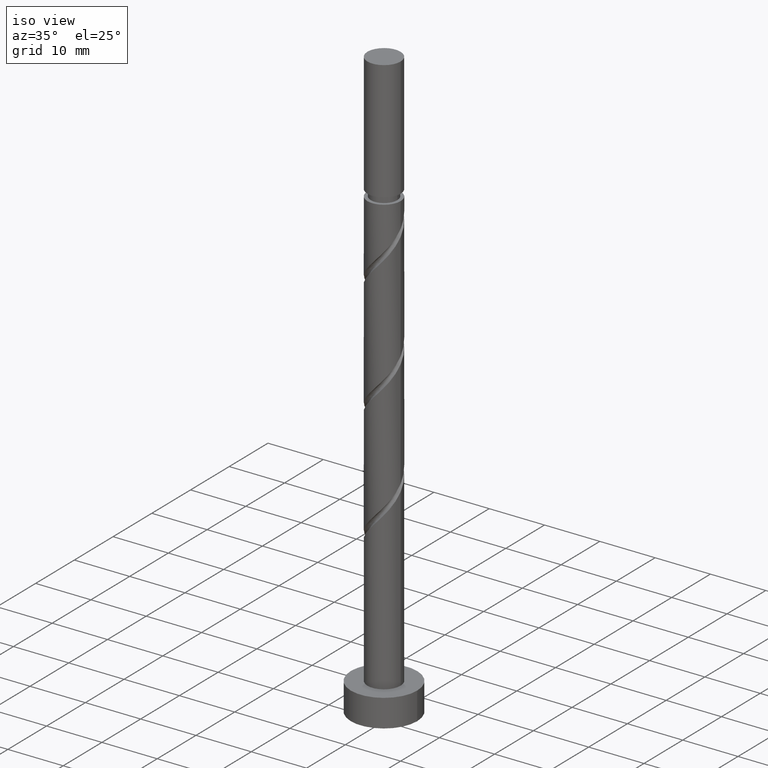
[diagram: clean part render]
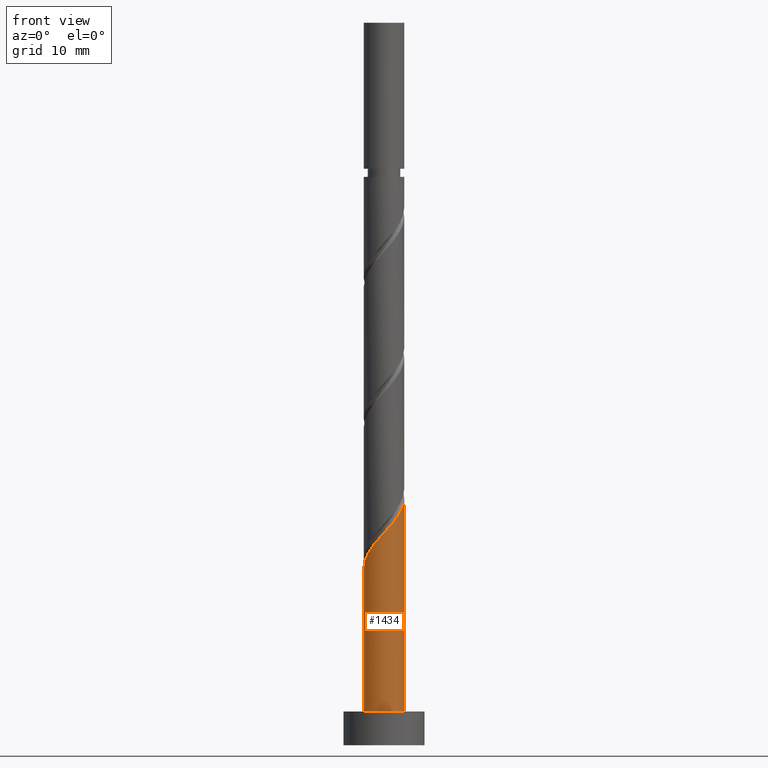
[diagram: tour spotlight — one face highlighted and labeled with its STEP entity id]
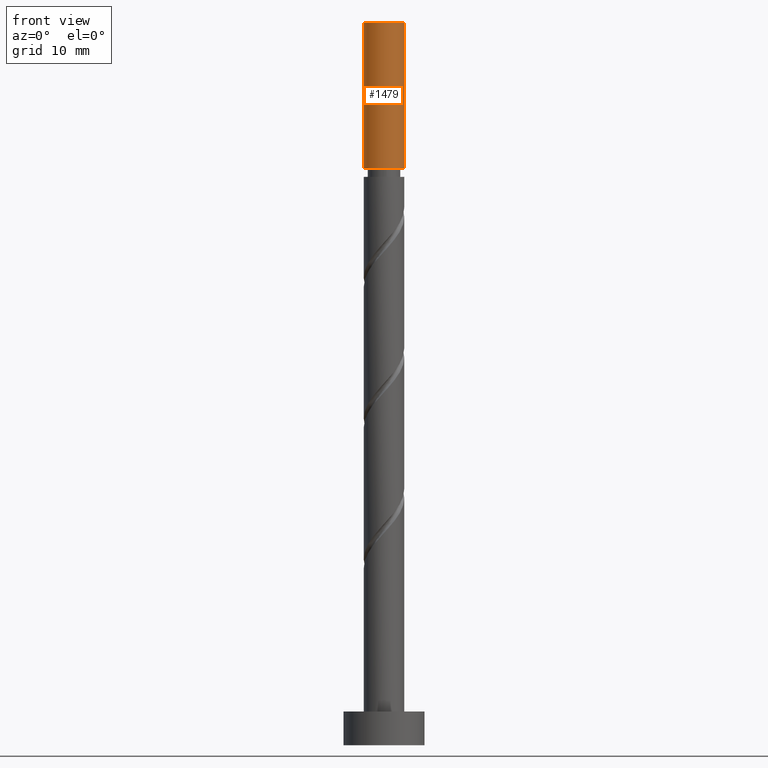
[diagram: tour spotlight — one face highlighted and labeled with its STEP entity id]
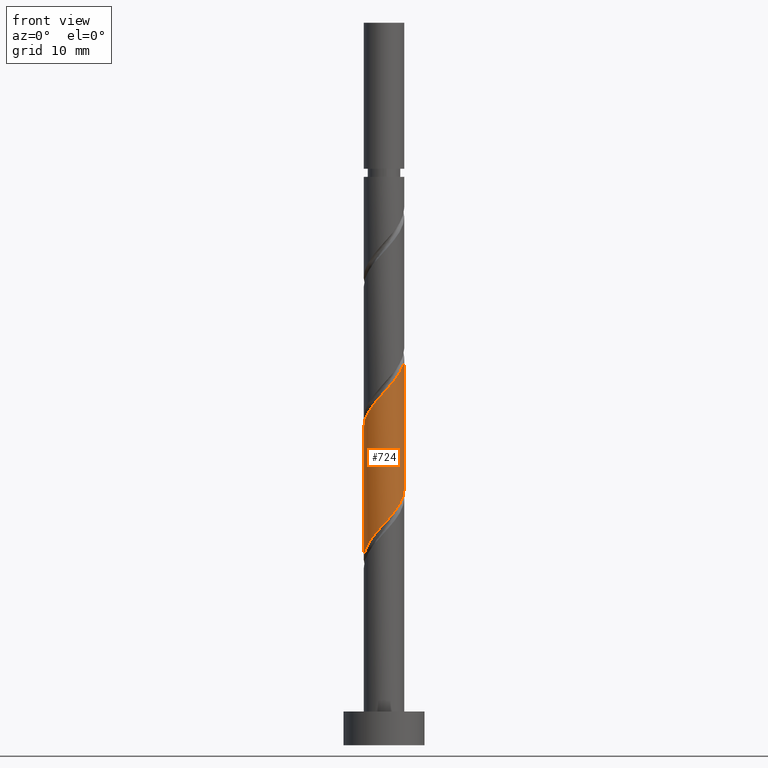
[diagram: tour spotlight — one face highlighted and labeled with its STEP entity id]
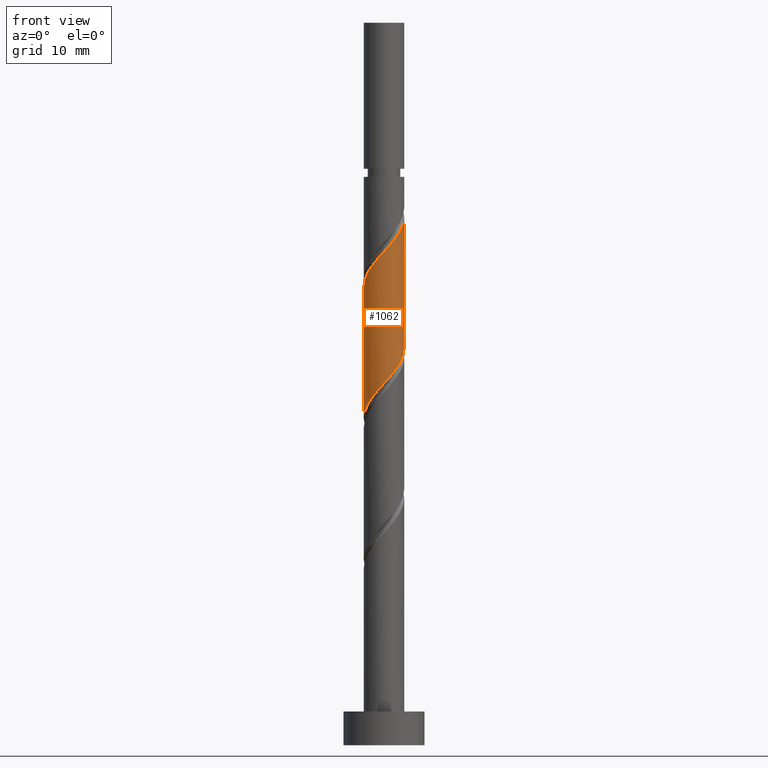
[diagram: tour spotlight — one face highlighted and labeled with its STEP entity id]
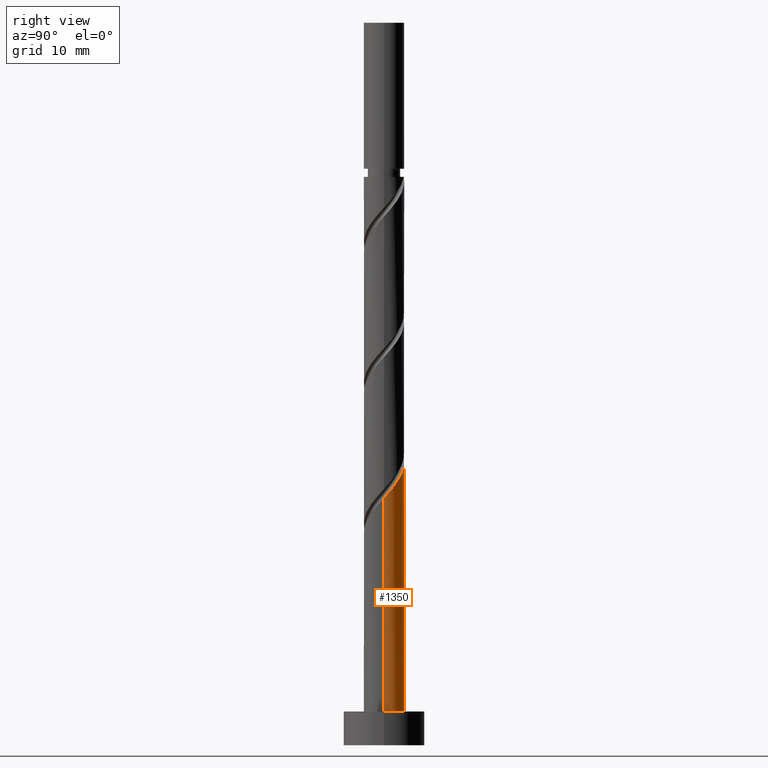
[diagram: tour spotlight — one face highlighted and labeled with its STEP entity id]
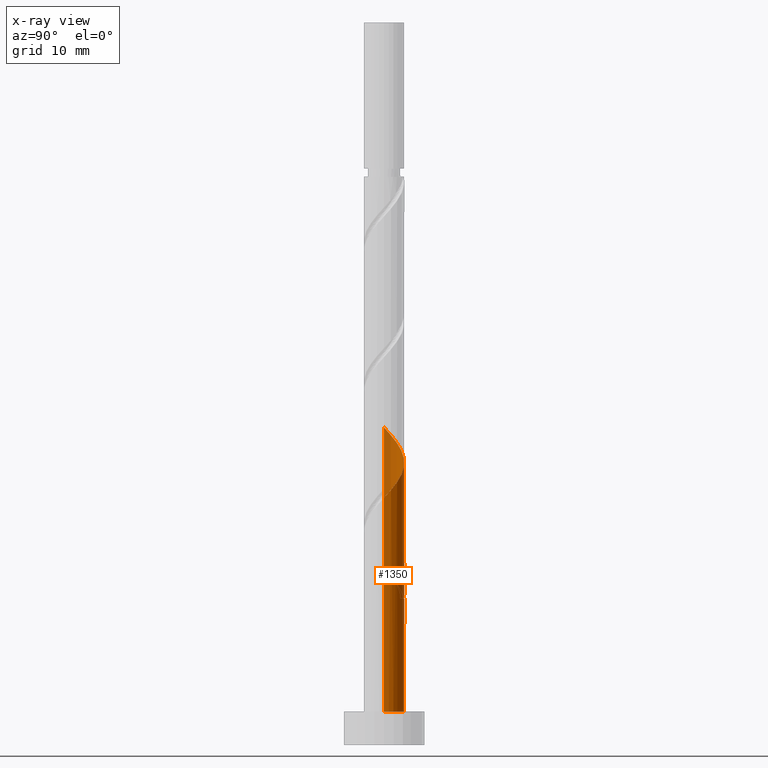
[diagram: x-ray of the same camera — body ghosted, this tour face saturated]
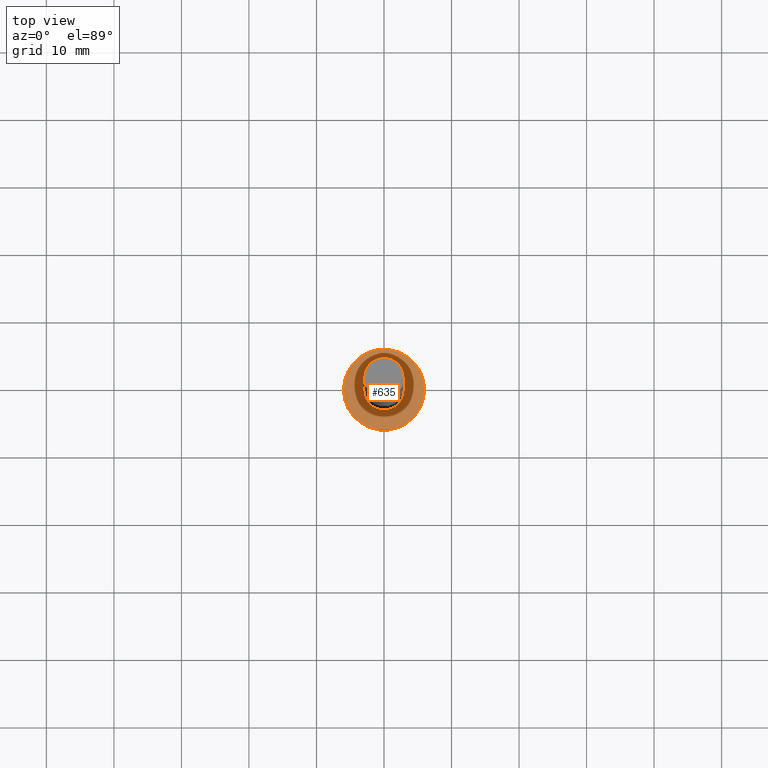
[diagram: tour spotlight — one face highlighted and labeled with its STEP entity id]
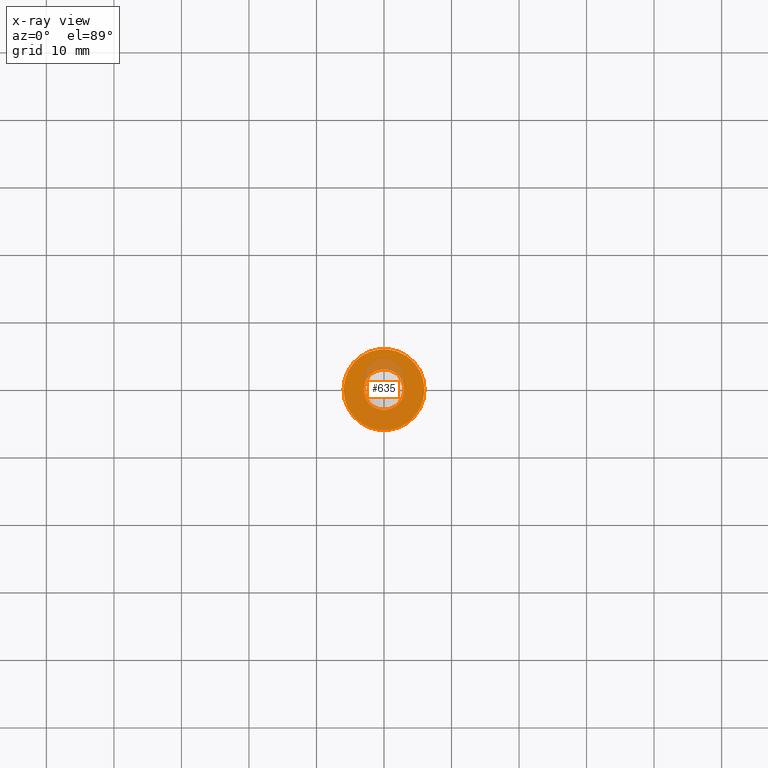
[diagram: x-ray of the same camera — body ghosted, this tour face saturated]
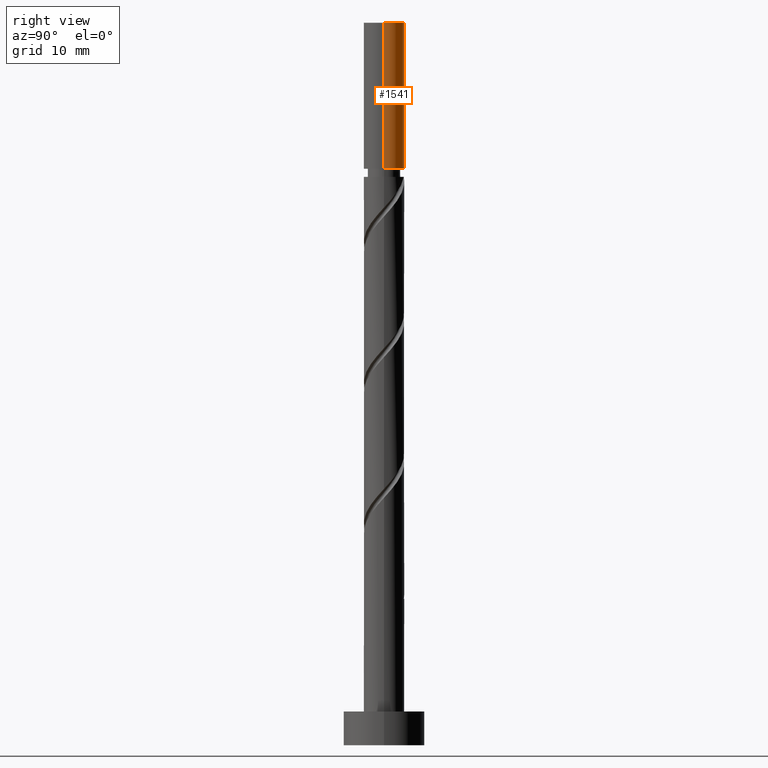
[diagram: tour spotlight — one face highlighted and labeled with its STEP entity id]
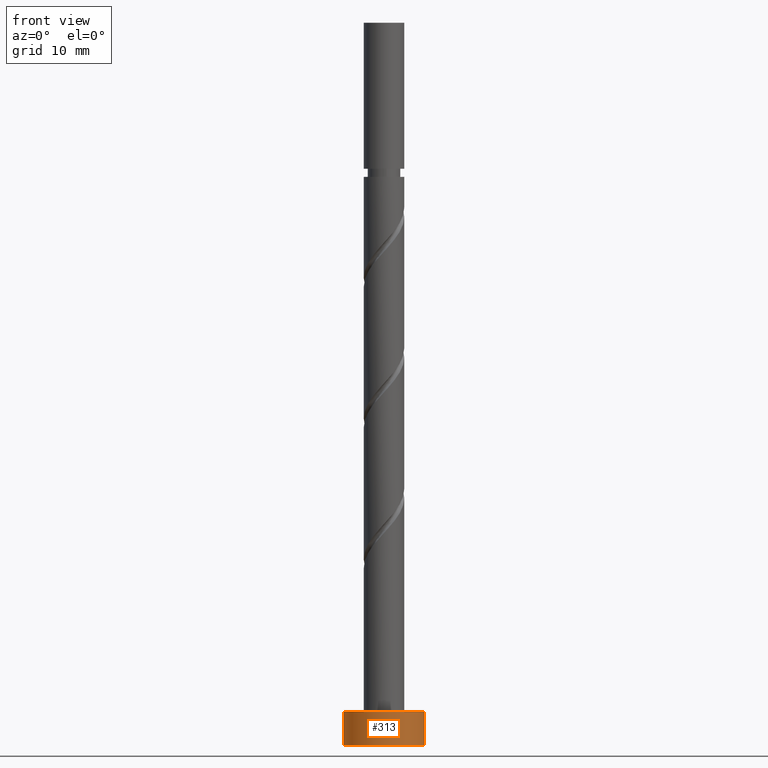
[diagram: tour spotlight — one face highlighted and labeled with its STEP entity id]
A machine part: a face-by-face anatomy tour. The part has 21 B-rep faces; the first image is the clean iso view, then the 8 largest visible faces are spotlighted one at a time (largest first), each with its STEP entity span.

Face 1 — front view, entity #1434. In plain terms, the highlighted cylindrical surface (edge-blend (fillet) strip) has radius 3 mm, axis along (-0, -0, -1).
Definition (entity closure, byte-faithful):
#28 = DIRECTION ( 'NONE',  ( -1.000000000000000000, 0.000000000000000000, 0.000000000000000000 ) ) ;
#83 = CARTESIAN_POINT ( 'NONE',  ( 3.000000000000004441, 1.349379250488523203E-15, 36.64460972397424854 ) ) ;
#106 = CARTESIAN_POINT ( 'NONE',  ( -2.027606598413815853, -2.211065689225171660, 28.97607883211117397 ) ) ;
#116 = VERTEX_POINT ( 'NONE', #376 ) ;
#118 = DIRECTION ( 'NONE',  ( 0.000000000000000000, 0.000000000000000000, 1.000000000000000000 ) ) ;
#194 = CARTESIAN_POINT ( 'NONE',  ( 1.889924352937061292, -2.377805000122529933, 33.66357883211116331 ) ) ;
#201 = EDGE_CURVE ( 'NONE', #116, #1098, #332, .T. ) ;
#239 =( BOUNDED_CURVE ( )  B_SPLINE_CURVE ( 2, ( #696, #1194, #1066, #1320, #1555, #1207, #106, #1201, #936, #488, #600, #1561, #964, #360, #848, #194, #1425, #1300, #702, #1181, #385, #985, #1471 ),
 .UNSPECIFIED., .F., .T. ) 
 B_SPLINE_CURVE_WITH_KNOTS ( ( 3, 2, 2, 2, 2, 2, 2, 2, 2, 2, 2, 3 ),
 ( 0.05453220231385528388, 0.06250000000000000000, 0.07499999999999995559, 0.08750000000000002220, 0.09999999999999997780, 0.1125000000000000444, 0.1250000000000000000, 0.1374999999999999556, 0.1500000000000000222, 0.1624999999999999778, 0.1750000000000000444, 0.1795322023138553047 ),
 .UNSPECIFIED. ) 
 CURVE ( )  GEOMETRIC_REPRESENTATION_ITEM ( )  RATIONAL_B_SPLINE_CURVE ( ( 0.9039174447099347365, 0.9019565955404640345, 0.9090909090909122803, 0.8978984914501284553, 0.9090909090909122803, 0.8978984914501284553, 0.9090909090909122803, 0.8978984914501284553, 0.9090909090909122803, 0.8978984914501284553, 0.9090909090909122803, 0.8978984914501284553, 0.9090909090909122803, 0.8978984914501284553, 0.9090909090909122803, 0.8978984914501284553, 0.9090909090909122803, 0.8978984914501284553, 0.9090909090909122803, 0.8978984914501284553, 0.9090909090909122803, 0.9050328050005767011, 0.9039174447099345144 ) ) 
 REPRESENTATION_ITEM ( '' )  );
#261 = ORIENTED_EDGE ( 'NONE', *, *, #1114, .T. ) ;
#264 = AXIS2_PLACEMENT_3D ( 'NONE', #1103, #1116, #28 ) ;
#323 = DIRECTION ( 'NONE',  ( -0.000000000000000000, -0.000000000000000000, -1.000000000000000000 ) ) ;
#332 = LINE ( 'NONE', #1283, #1441 ) ;
#360 = CARTESIAN_POINT ( 'NONE',  ( 1.062642716818108513, -2.845445682986358804, 32.62191216544450612 ) ) ;
#376 = CARTESIAN_POINT ( 'NONE',  ( -3.000000000000004441, -1.739199922851874320E-15, 26.22794305730757713 ) ) ;
#385 = CARTESIAN_POINT ( 'NONE',  ( 2.980586974261068001, -0.3407363920471084828, 36.26774549877783471 ) ) ;
#394 = EDGE_LOOP ( 'NONE', ( #1499, #1536, #829, #261 ) ) ;
#488 = CARTESIAN_POINT ( 'NONE',  ( -0.8128149918040504796, -2.926619631508484254, 30.53857883211117041 ) ) ;
#497 = CARTESIAN_POINT ( 'NONE',  ( -3.000000000000000444, 0.000000000000000000, 5.000000000000000000 ) ) ;
#508 = DIRECTION ( 'NONE',  ( 1.000000000000000000, 0.000000000000000000, 0.000000000000000000 ) ) ;
#516 = CYLINDRICAL_SURFACE ( 'NONE', #264, 3.000000000000000444 ) ;
#595 = EDGE_CURVE ( 'NONE', #116, #1027, #239, .T. ) ;
#600 = CARTESIAN_POINT ( 'NONE',  ( -0.3407363920471084828, -2.980586974261068001, 31.05941216544449901 ) ) ;
#684 = VECTOR ( 'NONE', #1341, 1000.000000000000000 ) ;
#696 = CARTESIAN_POINT ( 'NONE',  ( -3.000000000000004885, -1.739199922851874320E-15, 26.22794305730757713 ) ) ;
#702 = CARTESIAN_POINT ( 'NONE',  ( 2.729413328510882142, -1.245111594254576959, 35.22607883211116331 ) ) ;
#749 = CARTESIAN_POINT ( 'NONE',  ( 0.000000000000000000, 0.000000000000000000, 5.000000000000000000 ) ) ;
#811 = AXIS2_PLACEMENT_3D ( 'NONE', #749, #118, #508 ) ;
#829 = ORIENTED_EDGE ( 'NONE', *, *, #201, .T. ) ;
#848 = CARTESIAN_POINT ( 'NONE',  ( 1.476283534877585346, -2.611625341554445257, 33.14274549877784182 ) ) ;
#854 = CARTESIAN_POINT ( 'NONE',  ( 3.000000000000000444, 3.673940397442060361E-16, 107.0000000000000000 ) ) ;
#936 = CARTESIAN_POINT ( 'NONE',  ( -1.245111594254576959, -2.729413328510882142, 30.01774549877783471 ) ) ;
#964 = CARTESIAN_POINT ( 'NONE',  ( 0.5969924622639710687, -2.940000000000004388, 32.10107883211116331 ) ) ;
#985 = CARTESIAN_POINT ( 'NONE',  ( 3.000000000000004885, -0.1709212123392969962, 36.45509863476696921 ) ) ;
#1027 = VERTEX_POINT ( 'NONE', #83 ) ;
#1066 = CARTESIAN_POINT ( 'NONE',  ( -2.940000000000004388, -0.5969924622639711798, 26.89274549877784182 ) ) ;
#1098 = VERTEX_POINT ( 'NONE', #497 ) ;
#1103 = CARTESIAN_POINT ( 'NONE',  ( 0.000000000000000000, 0.000000000000000000, 107.0000000000000000 ) ) ;
#1114 = EDGE_CURVE ( 'NONE', #1098, #1353, #1188, .T. ) ;
#1116 = DIRECTION ( 'NONE',  ( -0.000000000000000000, -0.000000000000000000, -1.000000000000000000 ) ) ;
#1181 = CARTESIAN_POINT ( 'NONE',  ( 2.926619631508484254, -0.8128149918040507016, 35.74691216544450612 ) ) ;
#1188 = CIRCLE ( 'NONE', #811, 3.000000000000000444 ) ;
#1194 = CARTESIAN_POINT ( 'NONE',  ( -3.000000000000004885, -0.3015113445777654055, 26.56224763271542244 ) ) ;
#1201 = CARTESIAN_POINT ( 'NONE',  ( -1.677408196705101773, -2.532207025513280030, 29.49691216544449901 ) ) ;
#1207 = CARTESIAN_POINT ( 'NONE',  ( -2.377805000122529933, -1.889924352937061736, 28.45524549877784182 ) ) ;
#1230 = EDGE_CURVE ( 'NONE', #1027, #1353, #1460, .T. ) ;
#1253 = CARTESIAN_POINT ( 'NONE',  ( 3.000000000000000444, 3.673940397442060361E-16, 5.000000000000000000 ) ) ;
#1283 = CARTESIAN_POINT ( 'NONE',  ( -3.000000000000000444, 0.000000000000000000, 107.0000000000000000 ) ) ;
#1300 = CARTESIAN_POINT ( 'NONE',  ( 2.532207025513280030, -1.677408196705102439, 34.70524549877783471 ) ) ;
#1320 = CARTESIAN_POINT ( 'NONE',  ( -2.845445682986358804, -1.062642716818108735, 27.41357883211117397 ) ) ;
#1341 = DIRECTION ( 'NONE',  ( -0.000000000000000000, -0.000000000000000000, -1.000000000000000000 ) ) ;
#1353 = VERTEX_POINT ( 'NONE', #1253 ) ;
#1357 = FACE_OUTER_BOUND ( 'NONE', #394, .T. ) ;
#1425 = CARTESIAN_POINT ( 'NONE',  ( 2.211065689225171660, -2.027606598413815853, 34.18441216544449901 ) ) ;
#1434 = ADVANCED_FACE ( 'NONE', ( #1357 ), #516, .T. ) ;
#1441 = VECTOR ( 'NONE', #323, 1000.000000000000000 ) ;
#1460 = LINE ( 'NONE', #854, #684 ) ;
#1471 = CARTESIAN_POINT ( 'NONE',  ( 3.000000000000004441, 1.349379250488523203E-15, 36.64460972397424854 ) ) ;
#1499 = ORIENTED_EDGE ( 'NONE', *, *, #1230, .F. ) ;
#1536 = ORIENTED_EDGE ( 'NONE', *, *, #595, .F. ) ;
#1555 = CARTESIAN_POINT ( 'NONE',  ( -2.611625341554445257, -1.476283534877585568, 27.93441216544449546 ) ) ;
#1561 = CARTESIAN_POINT ( 'NONE',  ( 0.1313422077098337082, -3.034554317013650415, 31.58024549877783116 ) ) ;

Face 2 — front view, entity #1479. In plain terms, the highlighted cylindrical surface (edge-blend (fillet) strip) has radius 3 mm, axis along (-0, -0, -1).
Definition (entity closure, byte-faithful):
#20 = ORIENTED_EDGE ( 'NONE', *, *, #29, .F. ) ;
#29 = EDGE_CURVE ( 'NONE', #248, #143, #140, .T. ) ;
#36 = CIRCLE ( 'NONE', #1134, 3.000000000000000444 ) ;
#68 = DIRECTION ( 'NONE',  ( -0.000000000000000000, -0.000000000000000000, -1.000000000000000000 ) ) ;
#93 = DIRECTION ( 'NONE',  ( -0.000000000000000000, -0.000000000000000000, -1.000000000000000000 ) ) ;
#120 = CARTESIAN_POINT ( 'NONE',  ( 3.000000000000000444, 3.673940397442060361E-16, 107.0000000000000000 ) ) ;
#140 = LINE ( 'NONE', #120, #450 ) ;
#143 = VERTEX_POINT ( 'NONE', #487 ) ;
#148 = EDGE_LOOP ( 'NONE', ( #20, #362, #254, #957 ) ) ;
#248 = VERTEX_POINT ( 'NONE', #1189 ) ;
#254 = ORIENTED_EDGE ( 'NONE', *, *, #773, .T. ) ;
#258 = DIRECTION ( 'NONE',  ( -0.000000000000000000, -0.000000000000000000, -1.000000000000000000 ) ) ;
#329 = DIRECTION ( 'NONE',  ( -1.000000000000000000, 0.000000000000000000, 0.000000000000000000 ) ) ;
#362 = ORIENTED_EDGE ( 'NONE', *, *, #643, .F. ) ;
#404 = VERTEX_POINT ( 'NONE', #681 ) ;
#450 = VECTOR ( 'NONE', #258, 1000.000000000000000 ) ;
#487 = CARTESIAN_POINT ( 'NONE',  ( 3.000000000000002665, 3.673940397442062333E-16, 85.38441216544451606 ) ) ;
#525 = CARTESIAN_POINT ( 'NONE',  ( 0.000000000000000000, 0.000000000000000000, 107.0000000000000000 ) ) ;
#545 = EDGE_CURVE ( 'NONE', #143, #1167, #1054, .T. ) ;
#643 = EDGE_CURVE ( 'NONE', #404, #248, #36, .T. ) ;
#681 = CARTESIAN_POINT ( 'NONE',  ( -3.000000000000000444, 0.000000000000000000, 107.0000000000000000 ) ) ;
#686 = LINE ( 'NONE', #1148, #930 ) ;
#733 = CARTESIAN_POINT ( 'NONE',  ( -3.000000000000002220, 0.000000000000000000, 85.38441216544451606 ) ) ;
#741 = CARTESIAN_POINT ( 'NONE',  ( 0.000000000000000000, 0.000000000000000000, 107.0000000000000000 ) ) ;
#773 = EDGE_CURVE ( 'NONE', #404, #1167, #686, .T. ) ;
#856 = DIRECTION ( 'NONE',  ( 1.000000000000000000, 0.000000000000000000, 0.000000000000000000 ) ) ;
#930 = VECTOR ( 'NONE', #68, 1000.000000000000000 ) ;
#957 = ORIENTED_EDGE ( 'NONE', *, *, #545, .F. ) ;
#984 = DIRECTION ( 'NONE',  ( -0.000000000000000000, -0.000000000000000000, -1.000000000000000000 ) ) ;
#1001 = CYLINDRICAL_SURFACE ( 'NONE', #1496, 3.000000000000000444 ) ;
#1054 = CIRCLE ( 'NONE', #1078, 3.000000000000002220 ) ;
#1078 = AXIS2_PLACEMENT_3D ( 'NONE', #1569, #93, #329 ) ;
#1134 = AXIS2_PLACEMENT_3D ( 'NONE', #525, #1481, #856 ) ;
#1148 = CARTESIAN_POINT ( 'NONE',  ( -3.000000000000000444, 0.000000000000000000, 107.0000000000000000 ) ) ;
#1167 = VERTEX_POINT ( 'NONE', #733 ) ;
#1189 = CARTESIAN_POINT ( 'NONE',  ( 3.000000000000000444, 3.673940397442060361E-16, 107.0000000000000000 ) ) ;
#1239 = DIRECTION ( 'NONE',  ( -1.000000000000000000, 0.000000000000000000, 0.000000000000000000 ) ) ;
#1349 = FACE_OUTER_BOUND ( 'NONE', #148, .T. ) ;
#1479 = ADVANCED_FACE ( 'NONE', ( #1349 ), #1001, .T. ) ;
#1481 = DIRECTION ( 'NONE',  ( 0.000000000000000000, 0.000000000000000000, 1.000000000000000000 ) ) ;
#1496 = AXIS2_PLACEMENT_3D ( 'NONE', #741, #984, #1239 ) ;
#1569 = CARTESIAN_POINT ( 'NONE',  ( 0.000000000000000000, 0.000000000000000000, 85.38441216544451606 ) ) ;

Face 3 — front view, entity #724. In plain terms, the highlighted cylindrical surface (edge-blend (fillet) strip) has radius 3 mm, axis along (-0, -0, -1).
Definition (entity closure, byte-faithful):
#39 = CARTESIAN_POINT ( 'NONE',  ( -1.245111594254576959, -2.729413328510882142, 50.85107883211116331 ) ) ;
#46 = CARTESIAN_POINT ( 'NONE',  ( 0.1313422077098337082, -3.034554317013650415, 52.41357883211117041 ) ) ;
#59 = CARTESIAN_POINT ( 'NONE',  ( -3.000000000000003553, -0.3015113445777661827, 47.39558096604874038 ) ) ;
#77 = CARTESIAN_POINT ( 'NONE',  ( 2.211065689225171660, -2.027606598413815853, 55.01774549877784182 ) ) ;
#79 = VERTEX_POINT ( 'NONE', #750 ) ;
#98 = CARTESIAN_POINT ( 'NONE',  ( 2.940000000000000835, -0.5969924622639717349, 37.30941216544452033 ) ) ;
#104 = CARTESIAN_POINT ( 'NONE',  ( -0.1313422077098348462, -3.034554317013646862, 32.62191216544450612 ) ) ;
#178 = VERTEX_POINT ( 'NONE', #977 ) ;
#203 = CARTESIAN_POINT ( 'NONE',  ( -2.926619631508481145, -0.8128149918040488142, 28.45524549877784537 ) ) ;
#210 = CARTESIAN_POINT ( 'NONE',  ( -3.000000000000000888, -0.1709212123392976346, 27.74705902945538583 ) ) ;
#212 = VERTEX_POINT ( 'NONE', #1196 ) ;
#235 = CARTESIAN_POINT ( 'NONE',  ( 0.8128149918040484811, -2.926619631508481145, 33.66357883211118462 ) ) ;
#259 = CYLINDRICAL_SURFACE ( 'NONE', #532, 3.000000000000000444 ) ;
#275 = EDGE_CURVE ( 'NONE', #212, #79, #588, .T. ) ;
#285 = CARTESIAN_POINT ( 'NONE',  ( -0.3407363920471084828, -2.980586974261068001, 51.89274549877784892 ) ) ;
#301 = CARTESIAN_POINT ( 'NONE',  ( 1.889924352937061292, -2.377805000122529933, 54.49691216544450612 ) ) ;
#327 = CARTESIAN_POINT ( 'NONE',  ( 2.729413328510882142, -1.245111594254576959, 56.05941216544450612 ) ) ;
#335 = CARTESIAN_POINT ( 'NONE',  ( 3.000000000000000000, -0.3015113445777649614, 37.63991003150692904 ) ) ;
#340 = DIRECTION ( 'NONE',  ( -0.000000000000000000, -0.000000000000000000, -1.000000000000000000 ) ) ;
#344 = ORIENTED_EDGE ( 'NONE', *, *, #1009, .F. ) ;
#351 = CARTESIAN_POINT ( 'NONE',  ( 0.3407363920471068175, -2.980586974261064004, 33.14274549877784892 ) ) ;
#430 = CARTESIAN_POINT ( 'NONE',  ( -1.677408196705101773, -2.532207025513280030, 50.33024549877782761 ) ) ;
#453 = DIRECTION ( 'NONE',  ( -0.000000000000000000, -0.000000000000000000, -1.000000000000000000 ) ) ;
#467 = CARTESIAN_POINT ( 'NONE',  ( 2.532207025513280030, -1.677408196705102439, 55.53857883211117041 ) ) ;
#475 = CARTESIAN_POINT ( 'NONE',  ( 2.377805000122525492, -1.889924352937060181, 35.74691216544451322 ) ) ;
#499 = CARTESIAN_POINT ( 'NONE',  ( 0.000000000000000000, 0.000000000000000000, 107.0000000000000000 ) ) ;
#532 = AXIS2_PLACEMENT_3D ( 'NONE', #499, #757, #994 ) ;
#541 = CARTESIAN_POINT ( 'NONE',  ( 0.5969924622639710687, -2.940000000000004388, 52.93441216544449901 ) ) ;
#558 = CARTESIAN_POINT ( 'NONE',  ( -2.845445682986358804, -1.062642716818108735, 48.24691216544449190 ) ) ;
#581 = CARTESIAN_POINT ( 'NONE',  ( -3.000000000000000888, 2.623792987061035822E-15, 27.55754794024811005 ) ) ;
#588 = LINE ( 'NONE', #1432, #929 ) ;
#599 = LINE ( 'NONE', #726, #976 ) ;
#605 = CARTESIAN_POINT ( 'NONE',  ( -1.476283534877584458, -2.611625341554440372, 31.05941216544450967 ) ) ;
#629 = FACE_OUTER_BOUND ( 'NONE', #770, .T. ) ;
#680 = VERTEX_POINT ( 'NONE', #863 ) ;
#694 = CARTESIAN_POINT ( 'NONE',  ( -2.027606598413815853, -2.211065689225171660, 49.80941216544450612 ) ) ;
#700 = CARTESIAN_POINT ( 'NONE',  ( -2.980586974261064004, -0.3407363920471069285, 27.93441216544450612 ) ) ;
#724 = ADVANCED_FACE ( 'NONE', ( #629 ), #259, .T. ) ;
#726 = CARTESIAN_POINT ( 'NONE',  ( 3.000000000000000444, 3.673940397442060361E-16, 107.0000000000000000 ) ) ;
#750 = CARTESIAN_POINT ( 'NONE',  ( -3.000000000000000888, 2.623792987061035822E-15, 27.55754794024811005 ) ) ;
#757 = DIRECTION ( 'NONE',  ( -0.000000000000000000, -0.000000000000000000, -1.000000000000000000 ) ) ;
#770 = EDGE_LOOP ( 'NONE', ( #1089, #1141, #1336, #344 ) ) ;
#790 = EDGE_CURVE ( 'NONE', #212, #680, #1221, .T. ) ;
#814 = CARTESIAN_POINT ( 'NONE',  ( -2.611625341554445257, -1.476283534877585568, 48.76774549877783471 ) ) ;
#821 = CARTESIAN_POINT ( 'NONE',  ( 2.845445682986353475, -1.062642716818108513, 36.78857883211117752 ) ) ;
#828 = CARTESIAN_POINT ( 'NONE',  ( 1.245111594254574072, -2.729413328510879477, 34.18441216544450612 ) ) ;
#836 = CARTESIAN_POINT ( 'NONE',  ( -2.729413328510879477, -1.245111594254574072, 28.97607883211117041 ) ) ;
#842 = CARTESIAN_POINT ( 'NONE',  ( -0.5969924622639715128, -2.940000000000000835, 32.10107883211117041 ) ) ;
#863 = CARTESIAN_POINT ( 'NONE',  ( 3.000000000000004441, 1.349379250488523203E-15, 57.47794305730756292 ) ) ;
#897 = CARTESIAN_POINT ( 'NONE',  ( -2.940000000000004388, -0.5969924622639711798, 47.72607883211116331 ) ) ;
#929 = VECTOR ( 'NONE', #340, 1000.000000000000000 ) ;
#939 = EDGE_CURVE ( 'NONE', #680, #178, #599, .T. ) ;
#941 = CARTESIAN_POINT ( 'NONE',  ( 2.980586974261068001, -0.3407363920471084828, 57.10107883211116331 ) ) ;
#956 = CARTESIAN_POINT ( 'NONE',  ( 1.677408196705099108, -2.532207025513277365, 34.70524549877784892 ) ) ;
#962 = CARTESIAN_POINT ( 'NONE',  ( -1.062642716818108291, -2.845445682986353475, 31.58024549877783826 ) ) ;
#976 = VECTOR ( 'NONE', #453, 1000.000000000000000 ) ;
#977 = CARTESIAN_POINT ( 'NONE',  ( 3.000000000000000888, -2.923655042725154281E-15, 37.97421460691478501 ) ) ;
#994 = DIRECTION ( 'NONE',  ( -1.000000000000000000, 0.000000000000000000, 0.000000000000000000 ) ) ;
#1009 = EDGE_CURVE ( 'NONE', #178, #79, #1543, .T. ) ;
#1019 = CARTESIAN_POINT ( 'NONE',  ( 1.062642716818108513, -2.845445682986358804, 53.45524549877782761 ) ) ;
#1065 = CARTESIAN_POINT ( 'NONE',  ( 3.000000000000005329, -0.1709212123392949423, 57.28843196810029781 ) ) ;
#1080 = CARTESIAN_POINT ( 'NONE',  ( 3.000000000000004441, 1.349379250488523203E-15, 57.47794305730756292 ) ) ;
#1089 = ORIENTED_EDGE ( 'NONE', *, *, #939, .F. ) ;
#1141 = ORIENTED_EDGE ( 'NONE', *, *, #790, .F. ) ;
#1196 = CARTESIAN_POINT ( 'NONE',  ( -3.000000000000004441, -1.739199922851874320E-15, 47.06127639064090573 ) ) ;
#1206 = CARTESIAN_POINT ( 'NONE',  ( 2.027606598413812744, -2.211065689225169439, 35.22607883211117752 ) ) ;
#1221 =( BOUNDED_CURVE ( )  B_SPLINE_CURVE ( 2, ( #1517, #59, #897, #558, #814, #1293, #694, #430, #39, #1389, #285, #46, #541, #1019, #1403, #301, #77, #467, #327, #1423, #941, #1065, #1080 ),
 .UNSPECIFIED., .F., .T. ) 
 B_SPLINE_CURVE_WITH_KNOTS ( ( 3, 2, 2, 2, 2, 2, 2, 2, 2, 2, 2, 3 ),
 ( 0.3045322023138553047, 0.3125000000000000000, 0.3249999999999999556, 0.3375000000000000222, 0.3499999999999999778, 0.3625000000000000444, 0.3750000000000000000, 0.3874999999999999556, 0.4000000000000000222, 0.4124999999999999778, 0.4250000000000000444, 0.4295322023138553602 ),
 .UNSPECIFIED. ) 
 CURVE ( )  GEOMETRIC_REPRESENTATION_ITEM ( )  RATIONAL_B_SPLINE_CURVE ( ( 0.9039174447099345144, 0.9019565955404640345, 0.9090909090909122803, 0.8978984914501284553, 0.9090909090909122803, 0.8978984914501284553, 0.9090909090909122803, 0.8978984914501284553, 0.9090909090909122803, 0.8978984914501284553, 0.9090909090909122803, 0.8978984914501284553, 0.9090909090909122803, 0.8978984914501284553, 0.9090909090909122803, 0.8978984914501284553, 0.9090909090909122803, 0.8978984914501284553, 0.9090909090909122803, 0.8978984914501284553, 0.9090909090909122803, 0.9050328050005764791, 0.9039174447099345144 ) ) 
 REPRESENTATION_ITEM ( '' )  );
#1293 = CARTESIAN_POINT ( 'NONE',  ( -2.377805000122529933, -1.889924352937061736, 49.28857883211116331 ) ) ;
#1299 = CARTESIAN_POINT ( 'NONE',  ( -2.532207025513277365, -1.677408196705099108, 29.49691216544451322 ) ) ;
#1309 = CARTESIAN_POINT ( 'NONE',  ( 3.000000000000000888, -2.923655042725154281E-15, 37.97421460691478501 ) ) ;
#1325 = CARTESIAN_POINT ( 'NONE',  ( -2.211065689225169439, -2.027606598413812744, 30.01774549877784537 ) ) ;
#1336 = ORIENTED_EDGE ( 'NONE', *, *, #275, .T. ) ;
#1389 = CARTESIAN_POINT ( 'NONE',  ( -0.8128149918040504796, -2.926619631508484254, 51.37191216544450612 ) ) ;
#1403 = CARTESIAN_POINT ( 'NONE',  ( 1.476283534877585346, -2.611625341554445257, 53.97607883211116331 ) ) ;
#1423 = CARTESIAN_POINT ( 'NONE',  ( 2.926619631508484254, -0.8128149918040507016, 56.58024549877782761 ) ) ;
#1432 = CARTESIAN_POINT ( 'NONE',  ( -3.000000000000000444, 0.000000000000000000, 107.0000000000000000 ) ) ;
#1517 = CARTESIAN_POINT ( 'NONE',  ( -3.000000000000004441, -1.739199922851874320E-15, 47.06127639064090573 ) ) ;
#1543 =( BOUNDED_CURVE ( )  B_SPLINE_CURVE ( 2, ( #1309, #335, #98, #821, #1560, #475, #1206, #956, #828, #235, #351, #104, #842, #962, #605, #1545, #1325, #1299, #836, #203, #700, #210, #581 ),
 .UNSPECIFIED., .F., .T. ) 
 B_SPLINE_CURVE_WITH_KNOTS ( ( 3, 2, 2, 2, 2, 2, 2, 2, 2, 2, 2, 3 ),
 ( 0.8045322023138552492, 0.8125000000000000000, 0.8249999999999999556, 0.8375000000000000222, 0.8499999999999999778, 0.8625000000000000444, 0.8750000000000000000, 0.8874999999999999556, 0.9000000000000000222, 0.9124999999999999778, 0.9250000000000000444, 0.9295322023138552492 ),
 .UNSPECIFIED. ) 
 CURVE ( )  GEOMETRIC_REPRESENTATION_ITEM ( )  RATIONAL_B_SPLINE_CURVE ( ( 0.9039174447099280751, 0.9019565955404575952, 0.9090909090909058410, 0.8978984914501221271, 0.9090909090909058410, 0.8978984914501221271, 0.9090909090909058410, 0.8978984914501221271, 0.9090909090909058410, 0.8978984914501221271, 0.9090909090909058410, 0.8978984914501221271, 0.9090909090909058410, 0.8978984914501221271, 0.9090909090909058410, 0.8978984914501221271, 0.9090909090909058410, 0.8978984914501221271, 0.9090909090909058410, 0.8978984914501221271, 0.9090909090909058410, 0.9050328050005702618, 0.9039174447099280751 ) ) 
 REPRESENTATION_ITEM ( '' )  );
#1545 = CARTESIAN_POINT ( 'NONE',  ( -1.889924352937060181, -2.377805000122525492, 30.53857883211118107 ) ) ;
#1560 = CARTESIAN_POINT ( 'NONE',  ( 2.611625341554440372, -1.476283534877585124, 36.26774549877784892 ) ) ;

Face 4 — front view, entity #1062. In plain terms, the highlighted cylindrical surface (edge-blend (fillet) strip) has radius 3 mm, axis along (-0, -0, -1).
Definition (entity closure, byte-faithful):
#3 = CARTESIAN_POINT ( 'NONE',  ( 1.889924352937061292, -2.377805000122529933, 75.33024549877781340 ) ) ;
#9 = EDGE_LOOP ( 'NONE', ( #573, #105, #713, #296 ) ) ;
#75 =( BOUNDED_CURVE ( )  B_SPLINE_CURVE ( 2, ( #469, #352, #822, #958, #222, #1074, #213, #843, #608, #462, #950, #727, #477, #99, #1082, #721, #1446, #1327, #229, #338, #942, #1439, #1454 ),
 .UNSPECIFIED., .F., .T. ) 
 B_SPLINE_CURVE_WITH_KNOTS ( ( 3, 2, 2, 2, 2, 2, 2, 2, 2, 2, 2, 3 ),
 ( 0.5545322023138552492, 0.5625000000000000000, 0.5749999999999999556, 0.5875000000000000222, 0.5999999999999999778, 0.6125000000000000444, 0.6250000000000000000, 0.6374999999999999556, 0.6500000000000000222, 0.6624999999999999778, 0.6750000000000000444, 0.6795322023138552492 ),
 .UNSPECIFIED. ) 
 CURVE ( )  GEOMETRIC_REPRESENTATION_ITEM ( )  RATIONAL_B_SPLINE_CURVE ( ( 0.9039174447099280751, 0.9019565955404575952, 0.9090909090909058410, 0.8978984914501221271, 0.9090909090909058410, 0.8978984914501221271, 0.9090909090909058410, 0.8978984914501221271, 0.9090909090909058410, 0.8978984914501221271, 0.9090909090909058410, 0.8978984914501221271, 0.9090909090909058410, 0.8978984914501221271, 0.9090909090909058410, 0.8978984914501221271, 0.9090909090909058410, 0.8978984914501221271, 0.9090909090909058410, 0.8978984914501221271, 0.9090909090909058410, 0.9050328050005702618, 0.9039174447099280751 ) ) 
 REPRESENTATION_ITEM ( '' )  );
#88 = DIRECTION ( 'NONE',  ( -0.000000000000000000, -0.000000000000000000, -1.000000000000000000 ) ) ;
#99 = CARTESIAN_POINT ( 'NONE',  ( -1.062642716818108291, -2.845445682986353475, 52.41357883211117041 ) ) ;
#105 = ORIENTED_EDGE ( 'NONE', *, *, #295, .F. ) ;
#149 = CARTESIAN_POINT ( 'NONE',  ( -1.245111594254576959, -2.729413328510882142, 71.68441216544448480 ) ) ;
#213 = CARTESIAN_POINT ( 'NONE',  ( 2.027606598413812744, -2.211065689225169439, 56.05941216544451322 ) ) ;
#217 = CARTESIAN_POINT ( 'NONE',  ( -2.611625341554445257, -1.476283534877585568, 69.60107883211115620 ) ) ;
#222 = CARTESIAN_POINT ( 'NONE',  ( 2.611625341554440372, -1.476283534877585124, 57.10107883211118462 ) ) ;
#226 = EDGE_CURVE ( 'NONE', #1382, #1119, #1448, .T. ) ;
#229 = CARTESIAN_POINT ( 'NONE',  ( -2.729413328510879477, -1.245111594254574072, 49.80941216544450612 ) ) ;
#241 = VECTOR ( 'NONE', #320, 1000.000000000000000 ) ;
#250 = DIRECTION ( 'NONE',  ( -0.000000000000000000, -0.000000000000000000, -1.000000000000000000 ) ) ;
#295 = EDGE_CURVE ( 'NONE', #1382, #996, #1092, .T. ) ;
#296 = ORIENTED_EDGE ( 'NONE', *, *, #506, .F. ) ;
#311 = CARTESIAN_POINT ( 'NONE',  ( 3.000000000000000444, 3.673940397442060361E-16, 107.0000000000000000 ) ) ;
#320 = DIRECTION ( 'NONE',  ( -0.000000000000000000, -0.000000000000000000, -1.000000000000000000 ) ) ;
#338 = CARTESIAN_POINT ( 'NONE',  ( -2.926619631508481145, -0.8128149918040488142, 49.28857883211117041 ) ) ;
#343 = CARTESIAN_POINT ( 'NONE',  ( 3.000000000000004441, -1.949103361816755091E-16, 78.31127639064091284 ) ) ;
#352 = CARTESIAN_POINT ( 'NONE',  ( 3.000000000000000000, -0.3015113445777649614, 58.47324336484027185 ) ) ;
#366 = CARTESIAN_POINT ( 'NONE',  ( -3.000000000000000888, 2.623792987061035822E-15, 48.39088127358144220 ) ) ;
#403 = EDGE_CURVE ( 'NONE', #996, #1438, #1505, .T. ) ;
#405 = CARTESIAN_POINT ( 'NONE',  ( -0.8128149918040504796, -2.926619631508484254, 72.20524549877782761 ) ) ;
#426 = VECTOR ( 'NONE', #88, 1000.000000000000000 ) ;
#462 = CARTESIAN_POINT ( 'NONE',  ( 0.8128149918040484811, -2.926619631508481145, 54.49691216544450612 ) ) ;
#469 = CARTESIAN_POINT ( 'NONE',  ( 3.000000000000000888, -2.923655042725154281E-15, 58.80754794024812071 ) ) ;
#471 = CARTESIAN_POINT ( 'NONE',  ( -3.000000000000004441, -1.949103361816755091E-16, 67.89460972397424143 ) ) ;
#477 = CARTESIAN_POINT ( 'NONE',  ( -0.5969924622639715128, -2.940000000000000835, 52.93441216544451322 ) ) ;
#486 = CYLINDRICAL_SURFACE ( 'NONE', #738, 3.000000000000000444 ) ;
#506 = EDGE_CURVE ( 'NONE', #1438, #1119, #75, .T. ) ;
#514 = CARTESIAN_POINT ( 'NONE',  ( -2.027606598413815853, -2.211065689225171660, 70.64274549877782761 ) ) ;
#524 = CARTESIAN_POINT ( 'NONE',  ( 3.000000000000000888, -2.923655042725154281E-15, 58.80754794024812071 ) ) ;
#573 = ORIENTED_EDGE ( 'NONE', *, *, #403, .F. ) ;
#591 = FACE_OUTER_BOUND ( 'NONE', #9, .T. ) ;
#602 = CARTESIAN_POINT ( 'NONE',  ( -2.377805000122529933, -1.889924352937061736, 70.12191216544448480 ) ) ;
#608 = CARTESIAN_POINT ( 'NONE',  ( 1.245111594254574072, -2.729413328510879477, 55.01774549877784182 ) ) ;
#624 = CARTESIAN_POINT ( 'NONE',  ( 3.000000000000004441, -1.949103361816755091E-16, 78.31127639064091284 ) ) ;
#639 = CARTESIAN_POINT ( 'NONE',  ( 0.1313422077098337082, -3.034554317013650415, 73.24691216544449901 ) ) ;
#713 = ORIENTED_EDGE ( 'NONE', *, *, #226, .T. ) ;
#721 = CARTESIAN_POINT ( 'NONE',  ( -1.889924352937060181, -2.377805000122525492, 51.37191216544450612 ) ) ;
#727 = CARTESIAN_POINT ( 'NONE',  ( -0.1313422077098348462, -3.034554317013646862, 53.45524549877784182 ) ) ;
#729 = CARTESIAN_POINT ( 'NONE',  ( -2.845445682986358804, -1.062642716818108735, 69.08024549877784182 ) ) ;
#738 = AXIS2_PLACEMENT_3D ( 'NONE', #975, #250, #860 ) ;
#822 = CARTESIAN_POINT ( 'NONE',  ( 2.940000000000000835, -0.5969924622639717349, 58.14274549877784892 ) ) ;
#832 = CARTESIAN_POINT ( 'NONE',  ( -3.000000000000004441, -0.3015113445777599654, 68.22891429938206898 ) ) ;
#843 = CARTESIAN_POINT ( 'NONE',  ( 1.677408196705099108, -2.532207025513277365, 55.53857883211119173 ) ) ;
#860 = DIRECTION ( 'NONE',  ( -1.000000000000000000, 0.000000000000000000, 0.000000000000000000 ) ) ;
#942 = CARTESIAN_POINT ( 'NONE',  ( -2.980586974261064004, -0.3407363920471069285, 48.76774549877783471 ) ) ;
#950 = CARTESIAN_POINT ( 'NONE',  ( 0.3407363920471068175, -2.980586974261064004, 53.97607883211118462 ) ) ;
#958 = CARTESIAN_POINT ( 'NONE',  ( 2.845445682986353475, -1.062642716818108513, 57.62191216544451322 ) ) ;
#975 = CARTESIAN_POINT ( 'NONE',  ( 0.000000000000000000, 0.000000000000000000, 107.0000000000000000 ) ) ;
#996 = VERTEX_POINT ( 'NONE', #343 ) ;
#997 = CARTESIAN_POINT ( 'NONE',  ( 0.5969924622639710687, -2.940000000000004388, 73.76774549877781340 ) ) ;
#1062 = ADVANCED_FACE ( 'NONE', ( #591 ), #486, .T. ) ;
#1074 = CARTESIAN_POINT ( 'NONE',  ( 2.377805000122525492, -1.889924352937060181, 56.58024549877784892 ) ) ;
#1082 = CARTESIAN_POINT ( 'NONE',  ( -1.476283534877584458, -2.611625341554440372, 51.89274549877784182 ) ) ;
#1090 = CARTESIAN_POINT ( 'NONE',  ( -0.3407363920471084828, -2.980586974261068001, 72.72607883211118462 ) ) ;
#1092 =( BOUNDED_CURVE ( )  B_SPLINE_CURVE ( 2, ( #471, #832, #1329, #729, #217, #602, #514, #1304, #149, #405, #1090, #639, #997, #1361, #1099, #3, #1258, #1490, #1226, #1474, #1120, #1126, #624 ),
 .UNSPECIFIED., .F., .T. ) 
 B_SPLINE_CURVE_WITH_KNOTS ( ( 3, 2, 2, 2, 2, 2, 2, 2, 2, 2, 2, 3 ),
 ( 0.5545322023138551382, 0.5625000000000000000, 0.5749999999999999556, 0.5875000000000000222, 0.5999999999999999778, 0.6125000000000000444, 0.6250000000000000000, 0.6374999999999999556, 0.6500000000000000222, 0.6624999999999999778, 0.6750000000000000444, 0.6795322023138552492 ),
 .UNSPECIFIED. ) 
 CURVE ( )  GEOMETRIC_REPRESENTATION_ITEM ( )  RATIONAL_B_SPLINE_CURVE ( ( 0.9039174447099345144, 0.9019565955404639235, 0.9090909090909122803, 0.8978984914501284553, 0.9090909090909122803, 0.8978984914501284553, 0.9090909090909122803, 0.8978984914501284553, 0.9090909090909122803, 0.8978984914501284553, 0.9090909090909122803, 0.8978984914501284553, 0.9090909090909122803, 0.8978984914501284553, 0.9090909090909122803, 0.8978984914501284553, 0.9090909090909122803, 0.8978984914501284553, 0.9090909090909122803, 0.8978984914501284553, 0.9090909090909122803, 0.9050328050005767011, 0.9039174447099345144 ) ) 
 REPRESENTATION_ITEM ( '' )  );
#1099 = CARTESIAN_POINT ( 'NONE',  ( 1.476283534877585346, -2.611625341554445257, 74.80941216544449901 ) ) ;
#1119 = VERTEX_POINT ( 'NONE', #366 ) ;
#1120 = CARTESIAN_POINT ( 'NONE',  ( 2.980586974261068001, -0.3407363920471084828, 77.93441216544449901 ) ) ;
#1126 = CARTESIAN_POINT ( 'NONE',  ( 3.000000000000004885, -0.1709212123392991056, 78.12176530143362641 ) ) ;
#1217 = CARTESIAN_POINT ( 'NONE',  ( -3.000000000000000444, 0.000000000000000000, 107.0000000000000000 ) ) ;
#1226 = CARTESIAN_POINT ( 'NONE',  ( 2.729413328510882142, -1.245111594254576959, 76.89274549877782761 ) ) ;
#1258 = CARTESIAN_POINT ( 'NONE',  ( 2.211065689225171660, -2.027606598413815853, 75.85107883211118462 ) ) ;
#1304 = CARTESIAN_POINT ( 'NONE',  ( -1.677408196705101773, -2.532207025513280030, 71.16357883211114199 ) ) ;
#1327 = CARTESIAN_POINT ( 'NONE',  ( -2.532207025513277365, -1.677408196705099108, 50.33024549877784892 ) ) ;
#1329 = CARTESIAN_POINT ( 'NONE',  ( -2.940000000000004388, -0.5969924622639711798, 68.55941216544448480 ) ) ;
#1361 = CARTESIAN_POINT ( 'NONE',  ( 1.062642716818108513, -2.845445682986358804, 74.28857883211118462 ) ) ;
#1382 = VERTEX_POINT ( 'NONE', #1520 ) ;
#1438 = VERTEX_POINT ( 'NONE', #524 ) ;
#1439 = CARTESIAN_POINT ( 'NONE',  ( -3.000000000000000888, -0.1709212123392976346, 48.58039236278871442 ) ) ;
#1446 = CARTESIAN_POINT ( 'NONE',  ( -2.211065689225169439, -2.027606598413812744, 50.85107883211117041 ) ) ;
#1448 = LINE ( 'NONE', #1217, #426 ) ;
#1454 = CARTESIAN_POINT ( 'NONE',  ( -3.000000000000000888, 2.623792987061035822E-15, 48.39088127358144220 ) ) ;
#1474 = CARTESIAN_POINT ( 'NONE',  ( 2.926619631508484254, -0.8128149918040507016, 77.41357883211114199 ) ) ;
#1490 = CARTESIAN_POINT ( 'NONE',  ( 2.532207025513280030, -1.677408196705102439, 76.37191216544448480 ) ) ;
#1505 = LINE ( 'NONE', #311, #241 ) ;
#1520 = CARTESIAN_POINT ( 'NONE',  ( -3.000000000000004441, -1.949103361816755091E-16, 67.89460972397424143 ) ) ;

Face 5 — right view, entity #1350. An x-ray twin of the same camera follows (body ghosted, this face saturated) — the face is partly hidden behind the body. In plain terms, the highlighted cylindrical surface (edge-blend (fillet) strip) has radius 3 mm, axis along (-0, -0, -1).
Definition (entity closure, byte-faithful):
#13 = CIRCLE ( 'NONE', #908, 3.000000000000000444 ) ;
#19 =( BOUNDED_CURVE ( )  B_SPLINE_CURVE ( 2, ( #1306, #1203, #101, #596, #1069, #952, #354, #207, #1557, #707, #945 ),
 .UNSPECIFIED., .F., .T. ) 
 B_SPLINE_CURVE_WITH_KNOTS ( ( 3, 2, 2, 2, 2, 3 ),
 ( 0.000000000000000000, 0.01249999999999995559, 0.02500000000000002220, 0.03749999999999997780, 0.05000000000000004441, 0.05453220231385528388 ),
 .UNSPECIFIED. ) 
 CURVE ( )  GEOMETRIC_REPRESENTATION_ITEM ( )  RATIONAL_B_SPLINE_CURVE ( ( 0.9090909090909122803, 0.8978984914501284553, 0.9090909090909122803, 0.8978984914501284553, 0.9090909090909122803, 0.8978984914501284553, 0.9090909090909122803, 0.8978984914501284553, 0.9090909090909122803, 0.9050328050005767011, 0.9039174447099347365 ) ) 
 REPRESENTATION_ITEM ( '' )  );
#41 = ORIENTED_EDGE ( 'NONE', *, *, #417, .F. ) ;
#42 = CARTESIAN_POINT ( 'NONE',  ( -0.5969924622639707357, 2.940000000000004832, 21.68441216544450612 ) ) ;
#48 = CARTESIAN_POINT ( 'NONE',  ( 3.000000000000004441, 1.349379250488523203E-15, 36.64460972397424854 ) ) ;
#70 = ORIENTED_EDGE ( 'NONE', *, *, #136, .F. ) ;
#79 = VERTEX_POINT ( 'NONE', #750 ) ;
#83 = CARTESIAN_POINT ( 'NONE',  ( 3.000000000000004441, 1.349379250488523203E-15, 36.64460972397424854 ) ) ;
#101 = CARTESIAN_POINT ( 'NONE',  ( -1.476283534877585568, 2.611625341554444368, 22.72607883211116686 ) ) ;
#116 = VERTEX_POINT ( 'NONE', #376 ) ;
#131 = ORIENTED_EDGE ( 'NONE', *, *, #1185, .T. ) ;
#135 = AXIS2_PLACEMENT_3D ( 'NONE', #272, #381, #1111 ) ;
#136 = EDGE_CURVE ( 'NONE', #79, #1310, #1435, .T. ) ;
#164 = CARTESIAN_POINT ( 'NONE',  ( -0.1313422077098332919, 3.034554317013650415, 41.99691216544450612 ) ) ;
#170 = CARTESIAN_POINT ( 'NONE',  ( -2.926619631508484254, 0.8128149918040501465, 46.16357883211116331 ) ) ;
#187 = CARTESIAN_POINT ( 'NONE',  ( -1.476283534877585568, 2.611625341554444368, 43.55941216544449901 ) ) ;
#201 = EDGE_CURVE ( 'NONE', #116, #1098, #332, .T. ) ;
#207 = CARTESIAN_POINT ( 'NONE',  ( -2.926619631508484254, 0.8128149918040501465, 25.33024549877783471 ) ) ;
#212 = VERTEX_POINT ( 'NONE', #1196 ) ;
#232 = EDGE_CURVE ( 'NONE', #380, #116, #19, .T. ) ;
#236 = CARTESIAN_POINT ( 'NONE',  ( -1.677408196705099552, 2.532207025513277365, 24.28857883211117397 ) ) ;
#245 = CARTESIAN_POINT ( 'NONE',  ( -3.000000000000000888, 2.623792987061035822E-15, 27.55754794024811005 ) ) ;
#272 = CARTESIAN_POINT ( 'NONE',  ( 0.000000000000000000, 0.000000000000000000, 107.0000000000000000 ) ) ;
#275 = EDGE_CURVE ( 'NONE', #212, #79, #588, .T. ) ;
#287 = CARTESIAN_POINT ( 'NONE',  ( 2.027606598413816297, 2.211065689225171216, 39.39274549877784182 ) ) ;
#297 = CARTESIAN_POINT ( 'NONE',  ( -1.889924352937061736, 2.377805000122529933, 44.08024549877783471 ) ) ;
#310 = ORIENTED_EDGE ( 'NONE', *, *, #275, .F. ) ;
#323 = DIRECTION ( 'NONE',  ( -0.000000000000000000, -0.000000000000000000, -1.000000000000000000 ) ) ;
#332 = LINE ( 'NONE', #1283, #1441 ) ;
#340 = DIRECTION ( 'NONE',  ( -0.000000000000000000, -0.000000000000000000, -1.000000000000000000 ) ) ;
#354 = CARTESIAN_POINT ( 'NONE',  ( -2.729413328510883030, 1.245111594254576737, 24.80941216544451322 ) ) ;
#376 = CARTESIAN_POINT ( 'NONE',  ( -3.000000000000004441, -1.739199922851874320E-15, 26.22794305730757713 ) ) ;
#377 = DIRECTION ( 'NONE',  ( -1.000000000000000000, 0.000000000000000000, 0.000000000000000000 ) ) ;
#380 = VERTEX_POINT ( 'NONE', #42 ) ;
#381 = DIRECTION ( 'NONE',  ( -0.000000000000000000, -0.000000000000000000, -1.000000000000000000 ) ) ;
#392 = DIRECTION ( 'NONE',  ( 0.000000000000000000, -0.000000000000000000, -1.000000000000000000 ) ) ;
#415 = CARTESIAN_POINT ( 'NONE',  ( -3.000000000000004441, -1.739199922851874320E-15, 47.06127639064090573 ) ) ;
#417 = EDGE_CURVE ( 'NONE', #1027, #212, #1265, .T. ) ;
#422 = CARTESIAN_POINT ( 'NONE',  ( 3.000000000000003553, 0.3015113445777657386, 36.97891429938208319 ) ) ;
#432 = CARTESIAN_POINT ( 'NONE',  ( 0.3407363920471088714, 2.980586974261068001, 41.47607883211117752 ) ) ;
#451 = AXIS2_PLACEMENT_3D ( 'NONE', #978, #392, #377 ) ;
#461 = ORIENTED_EDGE ( 'NONE', *, *, #759, .T. ) ;
#492 = CARTESIAN_POINT ( 'NONE',  ( -3.000000000000000000, 0.3015113445777645729, 27.22324336484026830 ) ) ;
#497 = CARTESIAN_POINT ( 'NONE',  ( -3.000000000000000444, 0.000000000000000000, 5.000000000000000000 ) ) ;
#498 = CARTESIAN_POINT ( 'NONE',  ( -2.940000000000000835, 0.5969924622639712908, 26.89274549877784537 ) ) ;
#550 = CARTESIAN_POINT ( 'NONE',  ( 1.245111594254577403, 2.729413328510882142, 40.43441216544450612 ) ) ;
#588 = LINE ( 'NONE', #1432, #929 ) ;
#596 = CARTESIAN_POINT ( 'NONE',  ( -1.889924352937061736, 2.377805000122529933, 23.24691216544450256 ) ) ;
#612 = DIRECTION ( 'NONE',  ( 1.000000000000000000, 0.000000000000000000, 0.000000000000000000 ) ) ;
#613 = CARTESIAN_POINT ( 'NONE',  ( 0.1313422077098344298, 3.034554317013646862, 22.20524549877784537 ) ) ;
#617 = ORIENTED_EDGE ( 'NONE', *, *, #232, .F. ) ;
#620 = CARTESIAN_POINT ( 'NONE',  ( -2.611625341554440372, 1.476283534877584236, 25.85107883211118107 ) ) ;
#627 = CARTESIAN_POINT ( 'NONE',  ( -0.3407363920471073171, 2.980586974261064004, 22.72607883211117752 ) ) ;
#633 = FACE_OUTER_BOUND ( 'NONE', #1390, .T. ) ;
#657 = CARTESIAN_POINT ( 'NONE',  ( -2.211065689225171660, 2.027606598413815853, 44.60107883211117041 ) ) ;
#684 = VECTOR ( 'NONE', #1341, 1000.000000000000000 ) ;
#688 = CARTESIAN_POINT ( 'NONE',  ( -2.532207025513280474, 1.677408196705101773, 45.12191216544448480 ) ) ;
#707 = CARTESIAN_POINT ( 'NONE',  ( -3.000000000000005329, 0.1709212123392974958, 26.03843196810029781 ) ) ;
#734 = CARTESIAN_POINT ( 'NONE',  ( 0.5969924622639719569, 2.940000000000000835, 21.68441216544450612 ) ) ;
#742 = CARTESIAN_POINT ( 'NONE',  ( -1.245111594254574516, 2.729413328510879477, 23.76774549877784182 ) ) ;
#750 = CARTESIAN_POINT ( 'NONE',  ( -3.000000000000000888, 2.623792987061035822E-15, 27.55754794024811005 ) ) ;
#759 = EDGE_CURVE ( 'NONE', #380, #1310, #855, .T. ) ;
#785 = CARTESIAN_POINT ( 'NONE',  ( 0.8128149918040510347, 2.926619631508484254, 40.95524549877783471 ) ) ;
#798 = CARTESIAN_POINT ( 'NONE',  ( -2.980586974261068001, 0.3407363920471082608, 46.68441216544449901 ) ) ;
#806 = CARTESIAN_POINT ( 'NONE',  ( -0.5969924622639705136, 2.940000000000004388, 42.51774549877784182 ) ) ;
#854 = CARTESIAN_POINT ( 'NONE',  ( 3.000000000000000444, 3.673940397442060361E-16, 107.0000000000000000 ) ) ;
#855 = CIRCLE ( 'NONE', #451, 3.000000000000000444 ) ;
#858 = ORIENTED_EDGE ( 'NONE', *, *, #1230, .T. ) ;
#905 = CARTESIAN_POINT ( 'NONE',  ( 2.940000000000004388, 0.5969924622639708467, 37.30941216544450612 ) ) ;
#908 = AXIS2_PLACEMENT_3D ( 'NONE', #1102, #1085, #612 ) ;
#925 = CARTESIAN_POINT ( 'NONE',  ( 2.611625341554445257, 1.476283534877585346, 38.35107883211117041 ) ) ;
#929 = VECTOR ( 'NONE', #340, 1000.000000000000000 ) ;
#945 = CARTESIAN_POINT ( 'NONE',  ( -3.000000000000004885, -1.739199922851874320E-15, 26.22794305730757713 ) ) ;
#952 = CARTESIAN_POINT ( 'NONE',  ( -2.532207025513280474, 1.677408196705101773, 24.28857883211116686 ) ) ;
#963 = CARTESIAN_POINT ( 'NONE',  ( -2.377805000122525492, 1.889924352937059959, 25.33024549877784537 ) ) ;
#970 = CARTESIAN_POINT ( 'NONE',  ( -2.027606598413813188, 2.211065689225168995, 24.80941216544451322 ) ) ;
#978 = CARTESIAN_POINT ( 'NONE',  ( 0.000000000000000000, 0.000000000000000000, 21.68441216544450612 ) ) ;
#1027 = VERTEX_POINT ( 'NONE', #83 ) ;
#1038 = CARTESIAN_POINT ( 'NONE',  ( -2.729413328510883030, 1.245111594254576737, 45.64274549877783471 ) ) ;
#1043 = CARTESIAN_POINT ( 'NONE',  ( 2.377805000122529933, 1.889924352937061514, 38.87191216544449901 ) ) ;
#1069 = CARTESIAN_POINT ( 'NONE',  ( -2.211065689225171660, 2.027606598413815853, 23.76774549877783471 ) ) ;
#1085 = DIRECTION ( 'NONE',  ( 0.000000000000000000, 0.000000000000000000, 1.000000000000000000 ) ) ;
#1095 = CARTESIAN_POINT ( 'NONE',  ( -0.8128149918040488142, 2.926619631508481145, 23.24691216544450967 ) ) ;
#1098 = VERTEX_POINT ( 'NONE', #497 ) ;
#1102 = CARTESIAN_POINT ( 'NONE',  ( 0.000000000000000000, 0.000000000000000000, 5.000000000000000000 ) ) ;
#1111 = DIRECTION ( 'NONE',  ( -1.000000000000000000, 0.000000000000000000, 0.000000000000000000 ) ) ;
#1185 = EDGE_CURVE ( 'NONE', #1353, #1098, #13, .T. ) ;
#1196 = CARTESIAN_POINT ( 'NONE',  ( -3.000000000000004441, -1.739199922851874320E-15, 47.06127639064090573 ) ) ;
#1203 = CARTESIAN_POINT ( 'NONE',  ( -1.062642716818108957, 2.845445682986358804, 22.20524549877783826 ) ) ;
#1230 = EDGE_CURVE ( 'NONE', #1027, #1353, #1460, .T. ) ;
#1253 = CARTESIAN_POINT ( 'NONE',  ( 3.000000000000000444, 3.673940397442060361E-16, 5.000000000000000000 ) ) ;
#1265 =( BOUNDED_CURVE ( )  B_SPLINE_CURVE ( 2, ( #48, #422, #905, #1272, #925, #1043, #287, #1531, #550, #785, #432, #164, #806, #1288, #187, #297, #657, #688, #1038, #170, #798, #1280, #415 ),
 .UNSPECIFIED., .F., .T. ) 
 B_SPLINE_CURVE_WITH_KNOTS ( ( 3, 2, 2, 2, 2, 2, 2, 2, 2, 2, 2, 3 ),
 ( 0.1795322023138553047, 0.1875000000000000000, 0.1999999999999999556, 0.2125000000000000222, 0.2249999999999999778, 0.2375000000000000444, 0.2500000000000000000, 0.2624999999999999556, 0.2750000000000000222, 0.2874999999999999778, 0.3000000000000000444, 0.3045322023138553047 ),
 .UNSPECIFIED. ) 
 CURVE ( )  GEOMETRIC_REPRESENTATION_ITEM ( )  RATIONAL_B_SPLINE_CURVE ( ( 0.9039174447099345144, 0.9019565955404640345, 0.9090909090909122803, 0.8978984914501284553, 0.9090909090909122803, 0.8978984914501284553, 0.9090909090909122803, 0.8978984914501284553, 0.9090909090909122803, 0.8978984914501284553, 0.9090909090909122803, 0.8978984914501284553, 0.9090909090909122803, 0.8978984914501284553, 0.9090909090909122803, 0.8978984914501284553, 0.9090909090909122803, 0.8978984914501284553, 0.9090909090909122803, 0.8978984914501284553, 0.9090909090909122803, 0.9050328050005767011, 0.9039174447099345144 ) ) 
 REPRESENTATION_ITEM ( '' )  );
#1272 = CARTESIAN_POINT ( 'NONE',  ( 2.845445682986358804, 1.062642716818108291, 37.83024549877782761 ) ) ;
#1280 = CARTESIAN_POINT ( 'NONE',  ( -3.000000000000004885, 0.1709212123392966909, 46.87176530143362641 ) ) ;
#1283 = CARTESIAN_POINT ( 'NONE',  ( -3.000000000000000444, 0.000000000000000000, 107.0000000000000000 ) ) ;
#1288 = CARTESIAN_POINT ( 'NONE',  ( -1.062642716818108957, 2.845445682986358804, 43.03857883211117041 ) ) ;
#1303 = ORIENTED_EDGE ( 'NONE', *, *, #201, .F. ) ;
#1306 = CARTESIAN_POINT ( 'NONE',  ( -0.5969924622639708467, 2.940000000000004832, 21.68441216544450612 ) ) ;
#1310 = VERTEX_POINT ( 'NONE', #1385 ) ;
#1341 = DIRECTION ( 'NONE',  ( -0.000000000000000000, -0.000000000000000000, -1.000000000000000000 ) ) ;
#1350 = ADVANCED_FACE ( 'NONE', ( #633 ), #1475, .T. ) ;
#1353 = VERTEX_POINT ( 'NONE', #1253 ) ;
#1385 = CARTESIAN_POINT ( 'NONE',  ( 0.5969924622639719569, 2.940000000000000835, 21.68441216544450612 ) ) ;
#1390 = EDGE_LOOP ( 'NONE', ( #41, #858, #131, #1303, #617, #461, #70, #310 ) ) ;
#1432 = CARTESIAN_POINT ( 'NONE',  ( -3.000000000000000444, 0.000000000000000000, 107.0000000000000000 ) ) ;
#1435 =( BOUNDED_CURVE ( )  B_SPLINE_CURVE ( 2, ( #245, #492, #498, #1568, #620, #963, #970, #236, #742, #1095, #627, #613, #734 ),
 .UNSPECIFIED., .F., .T. ) 
 B_SPLINE_CURVE_WITH_KNOTS ( ( 3, 2, 2, 2, 2, 2, 3 ),
 ( 0.9295322023138552492, 0.9375000000000000000, 0.9499999999999999556, 0.9625000000000000222, 0.9749999999999999778, 0.9875000000000000444, 1.000000000000000000 ),
 .UNSPECIFIED. ) 
 CURVE ( )  GEOMETRIC_REPRESENTATION_ITEM ( )  RATIONAL_B_SPLINE_CURVE ( ( 0.9039174447099280751, 0.9019565955404575952, 0.9090909090909058410, 0.8978984914501221271, 0.9090909090909058410, 0.8978984914501221271, 0.9090909090909058410, 0.8978984914501221271, 0.9090909090909058410, 0.8978984914501221271, 0.9090909090909058410, 0.8978984914501221271, 0.9090909090909058410 ) ) 
 REPRESENTATION_ITEM ( '' )  );
#1441 = VECTOR ( 'NONE', #323, 1000.000000000000000 ) ;
#1460 = LINE ( 'NONE', #854, #684 ) ;
#1475 = CYLINDRICAL_SURFACE ( 'NONE', #135, 3.000000000000000444 ) ;
#1531 = CARTESIAN_POINT ( 'NONE',  ( 1.677408196705102439, 2.532207025513280030, 39.91357883211116331 ) ) ;
#1557 = CARTESIAN_POINT ( 'NONE',  ( -2.980586974261068001, 0.3407363920471082608, 25.85107883211117041 ) ) ;
#1568 = CARTESIAN_POINT ( 'NONE',  ( -2.845445682986353919, 1.062642716818108291, 26.37191216544451322 ) ) ;

Face 6 — top view, entity #635. An x-ray twin of the same camera follows (body ghosted, this face saturated) — the face is partly hidden behind the body. In plain terms, the highlighted planar face has unit normal (0, 0, 1).
Definition (entity closure, byte-faithful):
#13 = CIRCLE ( 'NONE', #908, 3.000000000000000444 ) ;
#47 = EDGE_LOOP ( 'NONE', ( #583, #155 ) ) ;
#118 = DIRECTION ( 'NONE',  ( 0.000000000000000000, 0.000000000000000000, 1.000000000000000000 ) ) ;
#146 = CARTESIAN_POINT ( 'NONE',  ( 0.000000000000000000, 0.000000000000000000, 5.000000000000000000 ) ) ;
#155 = ORIENTED_EDGE ( 'NONE', *, *, #1185, .F. ) ;
#185 = CIRCLE ( 'NONE', #1518, 6.000000000000000888 ) ;
#358 = CARTESIAN_POINT ( 'NONE',  ( 0.000000000000000000, 0.000000000000000000, 5.000000000000000000 ) ) ;
#399 = AXIS2_PLACEMENT_3D ( 'NONE', #837, #830, #1430 ) ;
#497 = CARTESIAN_POINT ( 'NONE',  ( -3.000000000000000444, 0.000000000000000000, 5.000000000000000000 ) ) ;
#508 = DIRECTION ( 'NONE',  ( 1.000000000000000000, 0.000000000000000000, 0.000000000000000000 ) ) ;
#510 = DIRECTION ( 'NONE',  ( 1.000000000000000000, 0.000000000000000000, -0.000000000000000000 ) ) ;
#527 = ORIENTED_EDGE ( 'NONE', *, *, #586, .T. ) ;
#583 = ORIENTED_EDGE ( 'NONE', *, *, #1114, .F. ) ;
#586 = EDGE_CURVE ( 'NONE', #980, #949, #1031, .T. ) ;
#612 = DIRECTION ( 'NONE',  ( 1.000000000000000000, 0.000000000000000000, 0.000000000000000000 ) ) ;
#621 = DIRECTION ( 'NONE',  ( 0.000000000000000000, 0.000000000000000000, 1.000000000000000000 ) ) ;
#635 = ADVANCED_FACE ( 'NONE', ( #1096, #1232 ), #1487, .T. ) ;
#749 = CARTESIAN_POINT ( 'NONE',  ( 0.000000000000000000, 0.000000000000000000, 5.000000000000000000 ) ) ;
#787 = AXIS2_PLACEMENT_3D ( 'NONE', #146, #621, #510 ) ;
#797 = ORIENTED_EDGE ( 'NONE', *, *, #894, .T. ) ;
#811 = AXIS2_PLACEMENT_3D ( 'NONE', #749, #118, #508 ) ;
#830 = DIRECTION ( 'NONE',  ( 0.000000000000000000, 0.000000000000000000, 1.000000000000000000 ) ) ;
#837 = CARTESIAN_POINT ( 'NONE',  ( 0.000000000000000000, 0.000000000000000000, 5.000000000000000000 ) ) ;
#894 = EDGE_CURVE ( 'NONE', #949, #980, #185, .T. ) ;
#908 = AXIS2_PLACEMENT_3D ( 'NONE', #1102, #1085, #612 ) ;
#949 = VERTEX_POINT ( 'NONE', #1057 ) ;
#980 = VERTEX_POINT ( 'NONE', #1072 ) ;
#1031 = CIRCLE ( 'NONE', #399, 6.000000000000000888 ) ;
#1057 = CARTESIAN_POINT ( 'NONE',  ( -6.000000000000000888, 0.000000000000000000, 5.000000000000000000 ) ) ;
#1072 = CARTESIAN_POINT ( 'NONE',  ( 6.000000000000000888, 7.347880794884120722E-16, 5.000000000000000000 ) ) ;
#1085 = DIRECTION ( 'NONE',  ( 0.000000000000000000, 0.000000000000000000, 1.000000000000000000 ) ) ;
#1096 = FACE_BOUND ( 'NONE', #47, .T. ) ;
#1098 = VERTEX_POINT ( 'NONE', #497 ) ;
#1102 = CARTESIAN_POINT ( 'NONE',  ( 0.000000000000000000, 0.000000000000000000, 5.000000000000000000 ) ) ;
#1114 = EDGE_CURVE ( 'NONE', #1098, #1353, #1188, .T. ) ;
#1149 = EDGE_LOOP ( 'NONE', ( #797, #527 ) ) ;
#1172 = DIRECTION ( 'NONE',  ( 0.000000000000000000, 0.000000000000000000, 1.000000000000000000 ) ) ;
#1185 = EDGE_CURVE ( 'NONE', #1353, #1098, #13, .T. ) ;
#1188 = CIRCLE ( 'NONE', #811, 3.000000000000000444 ) ;
#1232 = FACE_OUTER_BOUND ( 'NONE', #1149, .T. ) ;
#1253 = CARTESIAN_POINT ( 'NONE',  ( 3.000000000000000444, 3.673940397442060361E-16, 5.000000000000000000 ) ) ;
#1353 = VERTEX_POINT ( 'NONE', #1253 ) ;
#1430 = DIRECTION ( 'NONE',  ( 1.000000000000000000, 0.000000000000000000, 0.000000000000000000 ) ) ;
#1487 = PLANE ( 'NONE',  #787 ) ;
#1518 = AXIS2_PLACEMENT_3D ( 'NONE', #358, #1172, #1535 ) ;
#1535 = DIRECTION ( 'NONE',  ( 1.000000000000000000, 0.000000000000000000, 0.000000000000000000 ) ) ;

Face 7 — right view, entity #1541. In plain terms, the highlighted cylindrical surface (edge-blend (fillet) strip) has radius 3 mm, axis along (-0, -0, -1).
Definition (entity closure, byte-faithful):
#2 = ORIENTED_EDGE ( 'NONE', *, *, #162, .F. ) ;
#6 = CARTESIAN_POINT ( 'NONE',  ( 0.000000000000000000, 0.000000000000000000, 85.38441216544451606 ) ) ;
#29 = EDGE_CURVE ( 'NONE', #248, #143, #140, .T. ) ;
#57 = CIRCLE ( 'NONE', #1540, 3.000000000000000444 ) ;
#68 = DIRECTION ( 'NONE',  ( -0.000000000000000000, -0.000000000000000000, -1.000000000000000000 ) ) ;
#119 = CYLINDRICAL_SURFACE ( 'NONE', #1100, 3.000000000000000444 ) ;
#120 = CARTESIAN_POINT ( 'NONE',  ( 3.000000000000000444, 3.673940397442060361E-16, 107.0000000000000000 ) ) ;
#132 = CARTESIAN_POINT ( 'NONE',  ( 0.000000000000000000, 0.000000000000000000, 107.0000000000000000 ) ) ;
#140 = LINE ( 'NONE', #120, #450 ) ;
#143 = VERTEX_POINT ( 'NONE', #487 ) ;
#156 = DIRECTION ( 'NONE',  ( 1.000000000000000000, 0.000000000000000000, 0.000000000000000000 ) ) ;
#162 = EDGE_CURVE ( 'NONE', #1167, #143, #315, .T. ) ;
#169 = ORIENTED_EDGE ( 'NONE', *, *, #773, .F. ) ;
#211 = AXIS2_PLACEMENT_3D ( 'NONE', #6, #1213, #1104 ) ;
#248 = VERTEX_POINT ( 'NONE', #1189 ) ;
#258 = DIRECTION ( 'NONE',  ( -0.000000000000000000, -0.000000000000000000, -1.000000000000000000 ) ) ;
#315 = CIRCLE ( 'NONE', #211, 3.000000000000002220 ) ;
#363 = EDGE_CURVE ( 'NONE', #248, #404, #57, .T. ) ;
#384 = DIRECTION ( 'NONE',  ( -1.000000000000000000, 0.000000000000000000, 0.000000000000000000 ) ) ;
#404 = VERTEX_POINT ( 'NONE', #681 ) ;
#450 = VECTOR ( 'NONE', #258, 1000.000000000000000 ) ;
#454 = EDGE_LOOP ( 'NONE', ( #919, #1424, #2, #169 ) ) ;
#487 = CARTESIAN_POINT ( 'NONE',  ( 3.000000000000002665, 3.673940397442062333E-16, 85.38441216544451606 ) ) ;
#681 = CARTESIAN_POINT ( 'NONE',  ( -3.000000000000000444, 0.000000000000000000, 107.0000000000000000 ) ) ;
#686 = LINE ( 'NONE', #1148, #930 ) ;
#733 = CARTESIAN_POINT ( 'NONE',  ( -3.000000000000002220, 0.000000000000000000, 85.38441216544451606 ) ) ;
#773 = EDGE_CURVE ( 'NONE', #404, #1167, #686, .T. ) ;
#778 = DIRECTION ( 'NONE',  ( 0.000000000000000000, 0.000000000000000000, 1.000000000000000000 ) ) ;
#919 = ORIENTED_EDGE ( 'NONE', *, *, #363, .F. ) ;
#930 = VECTOR ( 'NONE', #68, 1000.000000000000000 ) ;
#969 = FACE_OUTER_BOUND ( 'NONE', #454, .T. ) ;
#1100 = AXIS2_PLACEMENT_3D ( 'NONE', #1220, #1478, #384 ) ;
#1104 = DIRECTION ( 'NONE',  ( -1.000000000000000000, 0.000000000000000000, 0.000000000000000000 ) ) ;
#1148 = CARTESIAN_POINT ( 'NONE',  ( -3.000000000000000444, 0.000000000000000000, 107.0000000000000000 ) ) ;
#1167 = VERTEX_POINT ( 'NONE', #733 ) ;
#1189 = CARTESIAN_POINT ( 'NONE',  ( 3.000000000000000444, 3.673940397442060361E-16, 107.0000000000000000 ) ) ;
#1213 = DIRECTION ( 'NONE',  ( -0.000000000000000000, -0.000000000000000000, -1.000000000000000000 ) ) ;
#1220 = CARTESIAN_POINT ( 'NONE',  ( 0.000000000000000000, 0.000000000000000000, 107.0000000000000000 ) ) ;
#1424 = ORIENTED_EDGE ( 'NONE', *, *, #29, .T. ) ;
#1478 = DIRECTION ( 'NONE',  ( -0.000000000000000000, -0.000000000000000000, -1.000000000000000000 ) ) ;
#1540 = AXIS2_PLACEMENT_3D ( 'NONE', #132, #778, #156 ) ;
#1541 = ADVANCED_FACE ( 'NONE', ( #969 ), #119, .T. ) ;

Face 8 — front view, entity #313. In plain terms, the highlighted cylindrical surface (partial cylindrical patch) has radius 6 mm, axis along (-0, -0, -1).
Definition (entity closure, byte-faithful):
#78 = EDGE_CURVE ( 'NONE', #123, #720, #1052, .T. ) ;
#92 = ORIENTED_EDGE ( 'NONE', *, *, #78, .T. ) ;
#123 = VERTEX_POINT ( 'NONE', #993 ) ;
#127 = DIRECTION ( 'NONE',  ( 1.000000000000000000, 0.000000000000000000, 0.000000000000000000 ) ) ;
#138 = DIRECTION ( 'NONE',  ( -0.000000000000000000, -0.000000000000000000, -1.000000000000000000 ) ) ;
#185 = CIRCLE ( 'NONE', #1518, 6.000000000000000888 ) ;
#313 = ADVANCED_FACE ( 'NONE', ( #866 ), #890, .T. ) ;
#358 = CARTESIAN_POINT ( 'NONE',  ( 0.000000000000000000, 0.000000000000000000, 5.000000000000000000 ) ) ;
#383 = DIRECTION ( 'NONE',  ( -0.000000000000000000, -0.000000000000000000, -1.000000000000000000 ) ) ;
#398 = AXIS2_PLACEMENT_3D ( 'NONE', #862, #767, #127 ) ;
#428 = VECTOR ( 'NONE', #138, 1000.000000000000000 ) ;
#536 = ORIENTED_EDGE ( 'NONE', *, *, #1209, .T. ) ;
#619 = CARTESIAN_POINT ( 'NONE',  ( 6.000000000000000888, 7.347880794884120722E-16, 5.000000000000000000 ) ) ;
#631 = ORIENTED_EDGE ( 'NONE', *, *, #894, .F. ) ;
#710 = VECTOR ( 'NONE', #383, 1000.000000000000000 ) ;
#720 = VERTEX_POINT ( 'NONE', #1358 ) ;
#755 = CARTESIAN_POINT ( 'NONE',  ( -6.000000000000000888, 0.000000000000000000, 5.000000000000000000 ) ) ;
#760 = AXIS2_PLACEMENT_3D ( 'NONE', #1354, #882, #1006 ) ;
#767 = DIRECTION ( 'NONE',  ( 0.000000000000000000, 0.000000000000000000, 1.000000000000000000 ) ) ;
#862 = CARTESIAN_POINT ( 'NONE',  ( 0.000000000000000000, 0.000000000000000000, 0.000000000000000000 ) ) ;
#865 = ORIENTED_EDGE ( 'NONE', *, *, #1162, .F. ) ;
#866 = FACE_OUTER_BOUND ( 'NONE', #1549, .T. ) ;
#882 = DIRECTION ( 'NONE',  ( -0.000000000000000000, -0.000000000000000000, -1.000000000000000000 ) ) ;
#890 = CYLINDRICAL_SURFACE ( 'NONE', #760, 6.000000000000000888 ) ;
#894 = EDGE_CURVE ( 'NONE', #949, #980, #185, .T. ) ;
#949 = VERTEX_POINT ( 'NONE', #1057 ) ;
#980 = VERTEX_POINT ( 'NONE', #1072 ) ;
#993 = CARTESIAN_POINT ( 'NONE',  ( -6.000000000000000888, 0.000000000000000000, 0.000000000000000000 ) ) ;
#1006 = DIRECTION ( 'NONE',  ( -1.000000000000000000, 0.000000000000000000, 0.000000000000000000 ) ) ;
#1052 = CIRCLE ( 'NONE', #398, 6.000000000000000888 ) ;
#1057 = CARTESIAN_POINT ( 'NONE',  ( -6.000000000000000888, 0.000000000000000000, 5.000000000000000000 ) ) ;
#1072 = CARTESIAN_POINT ( 'NONE',  ( 6.000000000000000888, 7.347880794884120722E-16, 5.000000000000000000 ) ) ;
#1162 = EDGE_CURVE ( 'NONE', #980, #720, #1219, .T. ) ;
#1172 = DIRECTION ( 'NONE',  ( 0.000000000000000000, 0.000000000000000000, 1.000000000000000000 ) ) ;
#1209 = EDGE_CURVE ( 'NONE', #949, #123, #1573, .T. ) ;
#1219 = LINE ( 'NONE', #619, #710 ) ;
#1354 = CARTESIAN_POINT ( 'NONE',  ( 0.000000000000000000, 0.000000000000000000, 5.000000000000000000 ) ) ;
#1358 = CARTESIAN_POINT ( 'NONE',  ( 6.000000000000000888, 7.347880794884120722E-16, 0.000000000000000000 ) ) ;
#1518 = AXIS2_PLACEMENT_3D ( 'NONE', #358, #1172, #1535 ) ;
#1535 = DIRECTION ( 'NONE',  ( 1.000000000000000000, 0.000000000000000000, 0.000000000000000000 ) ) ;
#1549 = EDGE_LOOP ( 'NONE', ( #865, #631, #536, #92 ) ) ;
#1573 = LINE ( 'NONE', #755, #428 ) ;